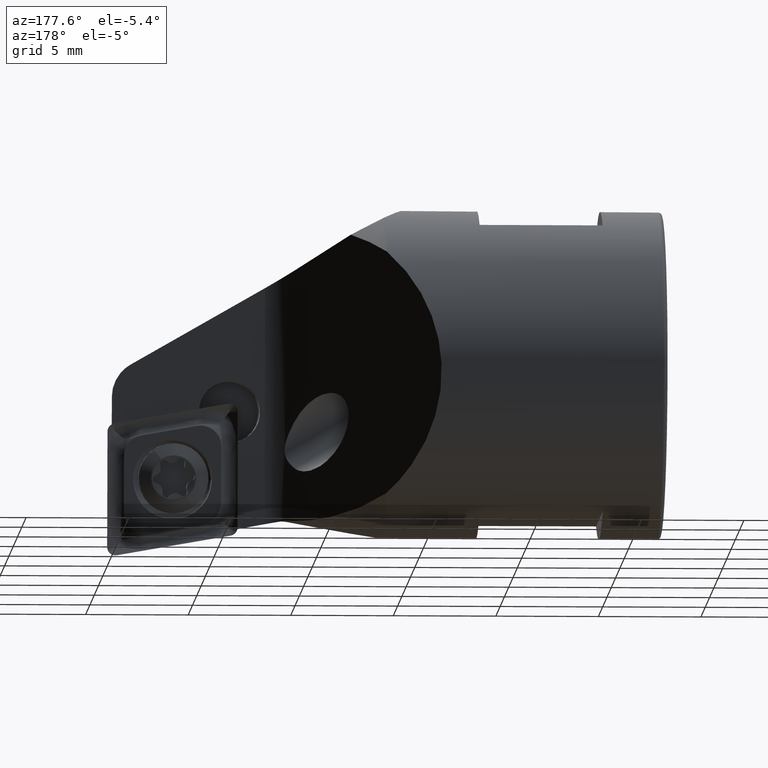
[diagram: clean part render]
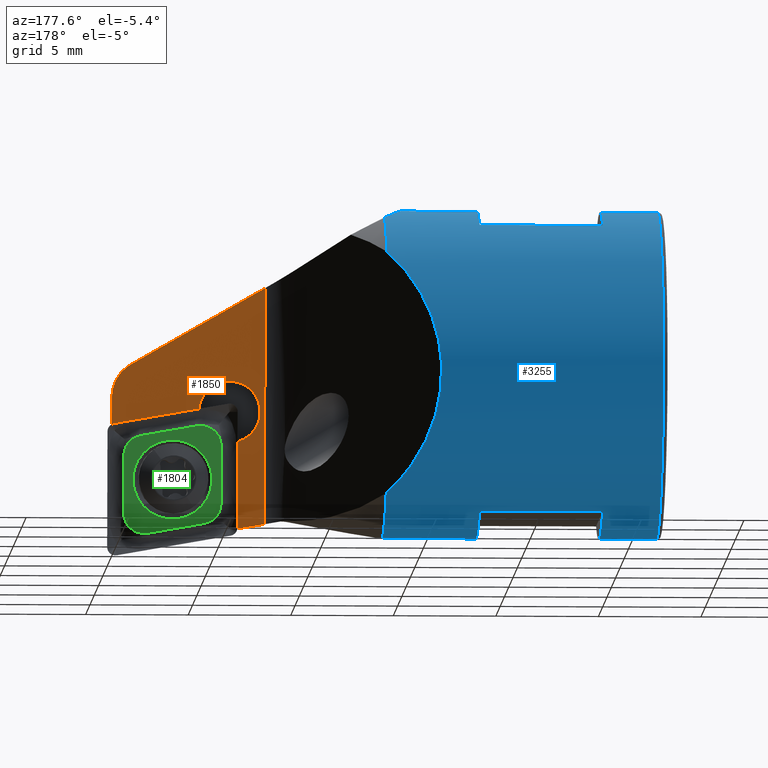
[diagram: same view with three faces highlighted in distinct colors, each labeled with its STEP entity id]
A machine part, auxiliary view with three faces highlighted in distinct colors.
Their STEP definitions:

[orange] entity #1850 — the highlighted planar face has unit normal (-0, -0.9976, 0.0698).
#24 = EDGE_CURVE ( 'NONE', #2496, #3749, #180, .T. ) ;
#27 = LINE ( 'NONE', #2710, #4649 ) ;
#180 = LINE ( 'NONE', #4576, #399 ) ;
#366 = CARTESIAN_POINT ( 'NONE',  ( -6.337721543909705900, 1.163699807732097900, 18.07524127599599200 ) ) ;
#368 = VERTEX_POINT ( 'NONE', #3011 ) ;
#399 = VECTOR ( 'NONE', #1688, 999.9999999999998900 ) ;
#412 = CARTESIAN_POINT ( 'NONE',  ( -7.671572875253806600, 0.008331871952272740900, 1.552710022703391000 ) ) ;
#464 = EDGE_CURVE ( 'NONE', #3749, #1198, #1265, .T. ) ;
#522 = EDGE_CURVE ( 'NONE', #4474, #2143, #644, .T. ) ;
#566 = EDGE_CURVE ( 'NONE', #1100, #4474, #1872, .T. ) ;
#593 = CARTESIAN_POINT ( 'NONE',  ( -5.949999999999999300, 0.4941664265494102300, 8.500467843974981000 ) ) ;
#644 = LINE ( 'NONE', #366, #1815 ) ;
#686 = EDGE_CURVE ( 'NONE', #2948, #2496, #27, .T. ) ;
#735 =( BOUNDED_CURVE ( )  B_SPLINE_CURVE ( 3, ( #3714, #1196, #3385, #1180 ),
 .UNSPECIFIED., .F., .T. ) 
 B_SPLINE_CURVE_WITH_KNOTS ( ( 4, 4 ),
 ( 3.141592653589793600, 4.188790204786395000 ),
 .UNSPECIFIED. ) 
 CURVE ( )  GEOMETRIC_REPRESENTATION_ITEM ( )  RATIONAL_B_SPLINE_CURVE ( ( 1.000000000000000000, 0.9106836025229584400, 0.9106836025229584400, 1.000000000000000000 ) ) 
 REPRESENTATION_ITEM ( '' )  );
#739 = DIRECTION ( 'NONE',  ( -2.673928673440923600E-016, -0.06975647374412889700, -0.9975640502598240900 ) ) ;
#807 = EDGE_CURVE ( 'NONE', #2837, #2948, #735, .T. ) ;
#996 = AXIS2_PLACEMENT_3D ( 'NONE', #3882, #3535, #3524 ) ;
#1008 = CARTESIAN_POINT ( 'NONE',  ( -6.337721543909709400, 0.2884528763772578100, 5.558627018479816300 ) ) ;
#1044 = DIRECTION ( 'NONE',  ( 0.0000000000000000000, -0.06975647374412888300, -0.9975640502598239800 ) ) ;
#1068 = DIRECTION ( 'NONE',  ( 0.0000000000000000000, -0.06975647374412888300, -0.9975640502598239800 ) ) ;
#1100 = VERTEX_POINT ( 'NONE', #593 ) ;
#1105 = DIRECTION ( 'NONE',  ( -0.9848077530122073500, 0.01211308454613938900, 0.1732251794336641700 ) ) ;
#1167 = PLANE ( 'NONE',  #3332 ) ;
#1180 = CARTESIAN_POINT ( 'NONE',  ( -1.119788281549143300, 0.5491258529037024200, 9.286424257928022300 ) ) ;
#1196 = CARTESIAN_POINT ( 'NONE',  ( -0.2122784560902990800, 0.4862930311162539400, 8.387873043578306200 ) ) ;
#1198 = VERTEX_POINT ( 'NONE', #2431 ) ;
#1265 = B_SPLINE_CURVE_WITH_KNOTS ( 'NONE', 3,
 ( #412, #2937, #3318, #2561 ),
 .UNSPECIFIED., .F., .F.,
 ( 4, 4 ),
 ( 2.031007869678814500E-007, 0.0006863923150194160100 ),
 .UNSPECIFIED. ) ;
#1269 = DIRECTION ( 'NONE',  ( -8.323569657295454800E-017, -0.9975640502598239800, 0.06975647374412888300 ) ) ;
#1286 = CARTESIAN_POINT ( 'NONE',  ( -0.2122784560902903100, 0.3464213542042839900, 6.387614873293690800 ) ) ;
#1408 = CARTESIAN_POINT ( 'NONE',  ( -5.949999999999999300, 0.3895317159332160100, 7.004121768585234200 ) ) ;
#1584 = CARTESIAN_POINT ( 'NONE',  ( -0.2122784560902901700, 1.163699807732097200, 18.07524127599599200 ) ) ;
#1633 = DIRECTION ( 'NONE',  ( -0.8676376859984115100, 0.03468270870635911700, 0.4959858420883721000 ) ) ;
#1688 = DIRECTION ( 'NONE',  ( -0.0000000000000000000, -0.06975647374412891100, -0.9975640502598240900 ) ) ;
#1734 = CARTESIAN_POINT ( 'NONE',  ( -6.337721543909710300, -0.008114519968755807100, 1.317515660713686900 ) ) ;
#1769 = CARTESIAN_POINT ( 'NONE',  ( -6.995859043601743800, -4.436204263310038100E-016, 1.433558702620277400 ) ) ;
#1805 = ORIENTED_EDGE ( 'NONE', *, *, #686, .F. ) ;
#1811 = ORIENTED_EDGE ( 'NONE', *, *, #807, .F. ) ;
#1815 = VECTOR ( 'NONE', #739, 999.9999999999998900 ) ;
#1837 = ORIENTED_EDGE ( 'NONE', *, *, #566, .T. ) ;
#1850 = ADVANCED_FACE ( 'NONE', ( #3482 ), #1167, .F. ) ;
#1868 = VERTEX_POINT ( 'NONE', #1286 ) ;
#1872 = CIRCLE ( 'NONE', #3816, 1.500000000000012200 ) ;
#2049 = EDGE_CURVE ( 'NONE', #1198, #2143, #2764, .T. ) ;
#2113 = EDGE_CURVE ( 'NONE', #368, #1100, #3327, .T. ) ;
#2143 = VERTEX_POINT ( 'NONE', #3166 ) ;
#2175 = CARTESIAN_POINT ( 'NONE',  ( -6.557100956112936500, -0.005409776924874504100, 1.356195288294396800 ) ) ;
#2431 = CARTESIAN_POINT ( 'NONE',  ( -6.995859043601743800, -4.436204263310038100E-016, 1.433558702620277400 ) ) ;
#2496 = VERTEX_POINT ( 'NONE', #2930 ) ;
#2561 = CARTESIAN_POINT ( 'NONE',  ( -6.995859043601743800, -4.436204263310038100E-016, 1.433558702620277400 ) ) ;
#2667 = ORIENTED_EDGE ( 'NONE', *, *, #2113, .T. ) ;
#2703 = ORIENTED_EDGE ( 'NONE', *, *, #522, .T. ) ;
#2710 = CARTESIAN_POINT ( 'NONE',  ( -4.077455297787660800, 0.6673548155571237300, 10.97717719471176600 ) ) ;
#2729 = EDGE_LOOP ( 'NONE', ( #3447, #2667, #1837, #2703, #3122, #3193, #2792, #1805, #1811, #2953 ) ) ;
#2747 = EDGE_CURVE ( 'NONE', #2837, #1868, #3141, .T. ) ;
#2764 = B_SPLINE_CURVE_WITH_KNOTS ( 'NONE', 3,
 ( #1769, #3818, #2175, #1734 ),
 .UNSPECIFIED., .F., .F.,
 ( 4, 4 ),
 ( 0.0006863923150194160100, 0.001354731151622601700 ),
 .UNSPECIFIED. ) ;
#2792 = ORIENTED_EDGE ( 'NONE', *, *, #24, .F. ) ;
#2803 = CARTESIAN_POINT ( 'NONE',  ( -1.119788281549143300, 0.5491258529037024200, 9.286424257928022300 ) ) ;
#2837 = VERTEX_POINT ( 'NONE', #4454 ) ;
#2930 = CARTESIAN_POINT ( 'NONE',  ( -7.671572875253806600, 0.8110250767816824500, 13.03175765149869000 ) ) ;
#2937 = CARTESIAN_POINT ( 'NONE',  ( -7.446335207320705000, 0.005554472405415430800, 1.512991358722244100 ) ) ;
#2948 = VERTEX_POINT ( 'NONE', #2803 ) ;
#2953 = ORIENTED_EDGE ( 'NONE', *, *, #2747, .T. ) ;
#3011 = CARTESIAN_POINT ( 'NONE',  ( -4.455662297605799800, 0.3986147564970480800, 7.134015300284769300 ) ) ;
#3065 = CARTESIAN_POINT ( 'NONE',  ( -2.009983433530131400, 0.3685330326655261700, 6.703826607343622800 ) ) ;
#3122 = ORIENTED_EDGE ( 'NONE', *, *, #2049, .F. ) ;
#3141 = LINE ( 'NONE', #1584, #3606 ) ;
#3166 = CARTESIAN_POINT ( 'NONE',  ( -6.337721543909710300, -0.008114519968755807100, 1.317515660713686900 ) ) ;
#3193 = ORIENTED_EDGE ( 'NONE', *, *, #464, .F. ) ;
#3318 = CARTESIAN_POINT ( 'NONE',  ( -7.221097258986692000, 0.002777183506422210100, 1.473274277079267700 ) ) ;
#3327 = CIRCLE ( 'NONE', #996, 1.500000000000012200 ) ;
#3332 = AXIS2_PLACEMENT_3D ( 'NONE', #3765, #1269, #1068 ) ;
#3385 = CARTESIAN_POINT ( 'NONE',  ( -0.5444501063922200200, 0.5261274439380359000, 8.957531686874665100 ) ) ;
#3447 = ORIENTED_EDGE ( 'NONE', *, *, #3806, .T. ) ;
#3482 = FACE_OUTER_BOUND ( 'NONE', #2729, .T. ) ;
#3509 = VECTOR ( 'NONE', #1105, 1000.000000000000100 ) ;
#3524 = DIRECTION ( 'NONE',  ( 0.0000000000000000000, -0.06975647374412888300, -0.9975640502598239800 ) ) ;
#3535 = DIRECTION ( 'NONE',  ( -8.323569657295456000E-017, -0.9975640502598240900, 0.06975647374412889700 ) ) ;
#3577 = DIRECTION ( 'NONE',  ( -8.323569657295456000E-017, -0.9975640502598240900, 0.06975647374412889700 ) ) ;
#3606 = VECTOR ( 'NONE', #3777, 999.9999999999998900 ) ;
#3640 = CARTESIAN_POINT ( 'NONE',  ( -7.671572875253806600, 0.008331871952272740900, 1.552710022703391000 ) ) ;
#3714 = CARTESIAN_POINT ( 'NONE',  ( -0.2122784560902902000, 0.4402962131849207900, 7.730087901471606000 ) ) ;
#3749 = VERTEX_POINT ( 'NONE', #3640 ) ;
#3765 = CARTESIAN_POINT ( 'NONE',  ( 0.0000000000000000000, 1.163699807732097200, 18.07524127599599200 ) ) ;
#3777 = DIRECTION ( 'NONE',  ( -3.495501893001518600E-018, -0.06975647374412891100, -0.9975640502598240900 ) ) ;
#3806 = EDGE_CURVE ( 'NONE', #1868, #368, #4229, .T. ) ;
#3816 = AXIS2_PLACEMENT_3D ( 'NONE', #1408, #3577, #1044 ) ;
#3818 = CARTESIAN_POINT ( 'NONE',  ( -6.776480126534665700, -0.002704938454135335300, 1.394876280542747500 ) ) ;
#3882 = CARTESIAN_POINT ( 'NONE',  ( -5.949999999999999300, 0.3895317159332160100, 7.004121768585234200 ) ) ;
#4229 = LINE ( 'NONE', #3065, #3509 ) ;
#4454 = CARTESIAN_POINT ( 'NONE',  ( -0.2122784560902902000, 0.4402962131849207900, 7.730087901471606000 ) ) ;
#4474 = VERTEX_POINT ( 'NONE', #1008 ) ;
#4576 = CARTESIAN_POINT ( 'NONE',  ( -7.671572875253806600, 1.163699807732097900, 18.07524127599599200 ) ) ;
#4649 = VECTOR ( 'NONE', #1633, 1000.000000000000100 ) ;

[blue] entity #3255 — the highlighted cylindrical surface (partial cylindrical patch) has radius 8 mm, axis along (-1, -0, -0).
#41 = DIRECTION ( 'NONE',  ( 1.000000000000000000, 0.0000000000000000000, 0.0000000000000000000 ) ) ;
#44 = CARTESIAN_POINT ( 'NONE',  ( -26.80000000000000100, 9.797174393178825700E-016, 0.8749999999999990000 ) ) ;
#65 = EDGE_CURVE ( 'NONE', #3859, #3621, #4622, .T. ) ;
#89 = DIRECTION ( 'NONE',  ( -1.000000000000000000, -0.0000000000000000000, -0.0000000000000000000 ) ) ;
#110 = ORIENTED_EDGE ( 'NONE', *, *, #2617, .T. ) ;
#120 = EDGE_CURVE ( 'NONE', #4185, #1428, #652, .T. ) ;
#142 = DIRECTION ( 'NONE',  ( -1.000000000000000000, -0.0000000000000000000, -0.0000000000000000000 ) ) ;
#182 = DIRECTION ( 'NONE',  ( -1.000000000000000000, -0.0000000000000000000, -0.0000000000000000000 ) ) ;
#214 = CYLINDRICAL_SURFACE ( 'NONE', #910, 8.000000000000001800 ) ;
#216 = EDGE_CURVE ( 'NONE', #2302, #1145, #2173, .T. ) ;
#283 = VECTOR ( 'NONE', #3525, 1000.000000000000000 ) ;
#310 = VERTEX_POINT ( 'NONE', #3802 ) ;
#344 = DIRECTION ( 'NONE',  ( 0.0000000000000000000, 0.0000000000000000000, 1.000000000000000000 ) ) ;
#367 = CARTESIAN_POINT ( 'NONE',  ( -24.00000000000000000, 9.797174393178825700E-016, 0.8749999999999990000 ) ) ;
#381 = FACE_OUTER_BOUND ( 'NONE', #4144, .T. ) ;
#394 = DIRECTION ( 'NONE',  ( -1.000000000000000000, -0.0000000000000000000, -0.0000000000000000000 ) ) ;
#396 = CARTESIAN_POINT ( 'NONE',  ( -26.80000000000000100, 0.0000000000000000000, 8.875000000000000000 ) ) ;
#424 = ORIENTED_EDGE ( 'NONE', *, *, #841, .F. ) ;
#499 = EDGE_CURVE ( 'NONE', #1145, #2898, #1547, .T. ) ;
#516 = VERTEX_POINT ( 'NONE', #1104 ) ;
#533 = AXIS2_PLACEMENT_3D ( 'NONE', #1510, #3683, #1154 ) ;
#576 = VECTOR ( 'NONE', #89, 1000.000000000000000 ) ;
#579 = ORIENTED_EDGE ( 'NONE', *, *, #3759, .T. ) ;
#610 =( BOUNDED_CURVE ( )  B_SPLINE_CURVE ( 3, ( #4101, #1016, #4486, #825 ),
 .UNSPECIFIED., .F., .T. ) 
 B_SPLINE_CURVE_WITH_KNOTS ( ( 4, 4 ),
 ( 5.456592466944900200, 7.109778147414272300 ),
 .UNSPECIFIED. ) 
 CURVE ( )  GEOMETRIC_REPRESENTATION_ITEM ( )  RATIONAL_B_SPLINE_CURVE ( ( 1.000000000000000000, 0.7849240587065967600, 0.7849240587065967600, 1.000000000000000000 ) ) 
 REPRESENTATION_ITEM ( '' )  );
#617 = DIRECTION ( 'NONE',  ( -1.000000000000000000, 0.0000000000000000000, 0.0000000000000000000 ) ) ;
#652 = CIRCLE ( 'NONE', #2601, 8.000000000000000000 ) ;
#659 = VECTOR ( 'NONE', #1628, 1000.000000000000000 ) ;
#757 = VERTEX_POINT ( 'NONE', #1583 ) ;
#825 = CARTESIAN_POINT ( 'NONE',  ( -13.40000000000000000, 4.995369731631496900, 2.626297635164571300 ) ) ;
#839 = EDGE_CURVE ( 'NONE', #2898, #757, #1751, .T. ) ;
#841 = EDGE_CURVE ( 'NONE', #757, #1428, #3574, .T. ) ;
#863 = CARTESIAN_POINT ( 'NONE',  ( -28.59735948021380400, 0.0000000000000000000, 16.87500000000000000 ) ) ;
#881 = VECTOR ( 'NONE', #394, 1000.000000000000000 ) ;
#910 = AXIS2_PLACEMENT_3D ( 'NONE', #1133, #182, #344 ) ;
#914 = ORIENTED_EDGE ( 'NONE', *, *, #120, .T. ) ;
#939 = CARTESIAN_POINT ( 'NONE',  ( -14.39467914299271100, 1.016792877065220600, 16.87500000000000000 ) ) ;
#1016 = CARTESIAN_POINT ( 'NONE',  ( -17.07694568971588500, 9.248211545426734400, 10.73359413129252200 ) ) ;
#1104 = CARTESIAN_POINT ( 'NONE',  ( -13.40000000000000000, 5.816406421883498500, 14.36766932697321600 ) ) ;
#1133 = CARTESIAN_POINT ( 'NONE',  ( -28.59735948021380400, 0.0000000000000000000, 8.875000000000000000 ) ) ;
#1138 = AXIS2_PLACEMENT_3D ( 'NONE', #4513, #2709, #2358 ) ;
#1145 = VERTEX_POINT ( 'NONE', #4605 ) ;
#1146 = LINE ( 'NONE', #863, #659 ) ;
#1154 = DIRECTION ( 'NONE',  ( 0.0000000000000000000, 0.0000000000000000000, -1.000000000000000000 ) ) ;
#1242 = EDGE_CURVE ( 'NONE', #310, #3370, #4238, .T. ) ;
#1253 = AXIS2_PLACEMENT_3D ( 'NONE', #3203, #4670, #1378 ) ;
#1306 = ORIENTED_EDGE ( 'NONE', *, *, #1242, .T. ) ;
#1361 = ORIENTED_EDGE ( 'NONE', *, *, #3706, .T. ) ;
#1378 = DIRECTION ( 'NONE',  ( 0.0000000000000000000, 0.0000000000000000000, 1.000000000000000000 ) ) ;
#1428 = VERTEX_POINT ( 'NONE', #3156 ) ;
#1510 = CARTESIAN_POINT ( 'NONE',  ( -24.00000000000000000, 0.0000000000000000000, 8.875000000000000000 ) ) ;
#1524 = ORIENTED_EDGE ( 'NONE', *, *, #839, .F. ) ;
#1536 = AXIS2_PLACEMENT_3D ( 'NONE', #2329, #142, #1762 ) ;
#1547 = LINE ( 'NONE', #3639, #881 ) ;
#1583 = CARTESIAN_POINT ( 'NONE',  ( -24.00000000000000000, 0.0000000000000000000, 16.87500000000000000 ) ) ;
#1606 = ORIENTED_EDGE ( 'NONE', *, *, #3006, .T. ) ;
#1626 = VERTEX_POINT ( 'NONE', #4072 ) ;
#1628 = DIRECTION ( 'NONE',  ( -1.000000000000000000, -0.0000000000000000000, -0.0000000000000000000 ) ) ;
#1669 = ORIENTED_EDGE ( 'NONE', *, *, #4629, .T. ) ;
#1751 = CIRCLE ( 'NONE', #533, 8.000000000000000000 ) ;
#1762 = DIRECTION ( 'NONE',  ( 0.0000000000000000000, 0.0000000000000000000, 1.000000000000000000 ) ) ;
#1780 = CARTESIAN_POINT ( 'NONE',  ( -13.40000000000000200, 2.960014748538741800, 16.30724815842643200 ) ) ;
#1891 = ORIENTED_EDGE ( 'NONE', *, *, #2698, .F. ) ;
#1914 = ORIENTED_EDGE ( 'NONE', *, *, #3187, .T. ) ;
#1972 = ORIENTED_EDGE ( 'NONE', *, *, #65, .F. ) ;
#2057 = CARTESIAN_POINT ( 'NONE',  ( -18.00000000000000400, 0.0000000000000000000, 8.875000000000000000 ) ) ;
#2173 = CIRCLE ( 'NONE', #4000, 8.000000000000001800 ) ;
#2192 = DIRECTION ( 'NONE',  ( 0.0000000000000000000, 0.0000000000000000000, -1.000000000000000000 ) ) ;
#2195 = CARTESIAN_POINT ( 'NONE',  ( -28.59735948021380400, 9.797174393178825700E-016, 0.8749999999999990000 ) ) ;
#2241 = CARTESIAN_POINT ( 'NONE',  ( -28.59735948021380400, 0.0000000000000000000, 16.87500000000000000 ) ) ;
#2302 = VERTEX_POINT ( 'NONE', #4492 ) ;
#2320 = CARTESIAN_POINT ( 'NONE',  ( -13.40000000000000200, 2.960014748538741800, 16.30724815842643200 ) ) ;
#2329 = CARTESIAN_POINT ( 'NONE',  ( -13.40000000000000000, 0.0000000000000000000, 8.875000000000000000 ) ) ;
#2358 = DIRECTION ( 'NONE',  ( 0.0000000000000000000, 0.0000000000000000000, 1.000000000000000000 ) ) ;
#2432 = VERTEX_POINT ( 'NONE', #3895 ) ;
#2472 = VECTOR ( 'NONE', #3134, 1000.000000000000000 ) ;
#2522 = CIRCLE ( 'NONE', #4190, 8.000000000000000000 ) ;
#2552 = LINE ( 'NONE', #4363, #3015 ) ;
#2562 = DIRECTION ( 'NONE',  ( 1.000000000000000000, 0.0000000000000000000, 0.0000000000000000000 ) ) ;
#2601 = AXIS2_PLACEMENT_3D ( 'NONE', #396, #41, #2192 ) ;
#2617 = EDGE_CURVE ( 'NONE', #2432, #3786, #4198, .T. ) ;
#2698 = EDGE_CURVE ( 'NONE', #3621, #2302, #1146, .T. ) ;
#2709 = DIRECTION ( 'NONE',  ( -1.000000000000000000, 0.0000000000000000000, 0.0000000000000000000 ) ) ;
#2741 = ORIENTED_EDGE ( 'NONE', *, *, #3376, .T. ) ;
#2762 = DIRECTION ( 'NONE',  ( 0.0000000000000000000, 0.0000000000000000000, 1.000000000000000000 ) ) ;
#2861 = CARTESIAN_POINT ( 'NONE',  ( -28.59735948021380400, 9.797174393178825700E-016, 0.8749999999999990000 ) ) ;
#2874 = DIRECTION ( 'NONE',  ( -1.000000000000000000, -0.0000000000000000000, -0.0000000000000000000 ) ) ;
#2898 = VERTEX_POINT ( 'NONE', #4276 ) ;
#2956 = VERTEX_POINT ( 'NONE', #4654 ) ;
#3006 = EDGE_CURVE ( 'NONE', #2956, #2432, #2552, .T. ) ;
#3015 = VECTOR ( 'NONE', #2874, 1000.000000000000000 ) ;
#3054 = CARTESIAN_POINT ( 'NONE',  ( -14.39544820129880000, 0.0000000000000000000, 16.87500000000000000 ) ) ;
#3134 = DIRECTION ( 'NONE',  ( -1.000000000000000000, -0.0000000000000000000, -0.0000000000000000000 ) ) ;
#3146 = CARTESIAN_POINT ( 'NONE',  ( -18.00000000000000400, 0.0000000000000000000, 8.875000000000000000 ) ) ;
#3156 = CARTESIAN_POINT ( 'NONE',  ( -26.80000000000000100, 0.0000000000000000000, 16.87500000000000000 ) ) ;
#3187 = EDGE_CURVE ( 'NONE', #516, #310, #610, .T. ) ;
#3203 = CARTESIAN_POINT ( 'NONE',  ( -13.40000000000000000, 0.0000000000000000000, 8.875000000000000000 ) ) ;
#3243 = DIRECTION ( 'NONE',  ( 0.0000000000000000000, 0.0000000000000000000, -1.000000000000000000 ) ) ;
#3255 = ADVANCED_FACE ( 'NONE', ( #381 ), #214, .T. ) ;
#3370 = VERTEX_POINT ( 'NONE', #3929 ) ;
#3376 = EDGE_CURVE ( 'NONE', #3859, #516, #3396, .T. ) ;
#3396 = CIRCLE ( 'NONE', #1536, 8.000000000000001800 ) ;
#3419 = CARTESIAN_POINT ( 'NONE',  ( -14.05885501612381800, 2.015382625030107000, 16.68346339746670600 ) ) ;
#3525 = DIRECTION ( 'NONE',  ( -1.000000000000000000, -0.0000000000000000000, -0.0000000000000000000 ) ) ;
#3558 = ORIENTED_EDGE ( 'NONE', *, *, #216, .F. ) ;
#3569 = LINE ( 'NONE', #2861, #283 ) ;
#3574 = LINE ( 'NONE', #2241, #576 ) ;
#3621 = VERTEX_POINT ( 'NONE', #4311 ) ;
#3639 = CARTESIAN_POINT ( 'NONE',  ( -28.59735948021380400, 3.872983346207415200, 15.87500000000000000 ) ) ;
#3683 = DIRECTION ( 'NONE',  ( 1.000000000000000000, 0.0000000000000000000, 0.0000000000000000000 ) ) ;
#3706 = EDGE_CURVE ( 'NONE', #1626, #2956, #2522, .T. ) ;
#3759 = EDGE_CURVE ( 'NONE', #3786, #4185, #3569, .T. ) ;
#3786 = VERTEX_POINT ( 'NONE', #367 ) ;
#3802 = CARTESIAN_POINT ( 'NONE',  ( -13.40000000000000000, 4.995369731631496900, 2.626297635164571300 ) ) ;
#3830 = LINE ( 'NONE', #2195, #2472 ) ;
#3859 = VERTEX_POINT ( 'NONE', #1780 ) ;
#3895 = CARTESIAN_POINT ( 'NONE',  ( -24.00000000000000000, 3.872983346207416100, 1.874999999999999100 ) ) ;
#3929 = CARTESIAN_POINT ( 'NONE',  ( -13.40000000000000000, 9.797174393178825700E-016, 0.8749999999999990000 ) ) ;
#3970 = ORIENTED_EDGE ( 'NONE', *, *, #499, .F. ) ;
#4000 = AXIS2_PLACEMENT_3D ( 'NONE', #3146, #617, #2762 ) ;
#4072 = CARTESIAN_POINT ( 'NONE',  ( -18.00000000000000400, 9.797174393178825700E-016, 0.8749999999999990000 ) ) ;
#4101 = CARTESIAN_POINT ( 'NONE',  ( -13.40000000000000000, 5.816406421883498500, 14.36766932697321600 ) ) ;
#4144 = EDGE_LOOP ( 'NONE', ( #1306, #1669, #1361, #1606, #110, #579, #914, #424, #1524, #3970, #3558, #1891, #1972, #2741, #1914 ) ) ;
#4185 = VERTEX_POINT ( 'NONE', #44 ) ;
#4190 = AXIS2_PLACEMENT_3D ( 'NONE', #2057, #2562, #3243 ) ;
#4198 = CIRCLE ( 'NONE', #1138, 8.000000000000001800 ) ;
#4238 = CIRCLE ( 'NONE', #1253, 8.000000000000001800 ) ;
#4276 = CARTESIAN_POINT ( 'NONE',  ( -24.00000000000000000, 3.872983346207415200, 15.87500000000000000 ) ) ;
#4311 = CARTESIAN_POINT ( 'NONE',  ( -14.39544820129880000, 0.0000000000000000000, 16.87500000000000000 ) ) ;
#4363 = CARTESIAN_POINT ( 'NONE',  ( -28.59735948021380400, 3.872983346207416100, 1.874999999999999100 ) ) ;
#4486 = CARTESIAN_POINT ( 'NONE',  ( -17.07694568971588500, 8.899542277725045000, 5.747391299918761300 ) ) ;
#4492 = CARTESIAN_POINT ( 'NONE',  ( -18.00000000000000400, 0.0000000000000000000, 16.87500000000000000 ) ) ;
#4513 = CARTESIAN_POINT ( 'NONE',  ( -24.00000000000000000, 0.0000000000000000000, 8.875000000000000000 ) ) ;
#4605 = CARTESIAN_POINT ( 'NONE',  ( -18.00000000000000400, 3.872983346207415200, 15.87500000000000000 ) ) ;
#4622 =( BOUNDED_CURVE ( )  B_SPLINE_CURVE ( 3, ( #2320, #3419, #939, #3054 ),
 .UNSPECIFIED., .F., .T. ) 
 B_SPLINE_CURVE_WITH_KNOTS ( ( 4, 4 ),
 ( 5.903741943103309400, 6.282752948196525200 ),
 .UNSPECIFIED. ) 
 CURVE ( )  GEOMETRIC_REPRESENTATION_ITEM ( )  RATIONAL_B_SPLINE_CURVE ( ( 1.000000000000000000, 0.9880650035282994000, 0.9880650035282994000, 1.000000000000000000 ) ) 
 REPRESENTATION_ITEM ( '' )  );
#4629 = EDGE_CURVE ( 'NONE', #3370, #1626, #3830, .T. ) ;
#4654 = CARTESIAN_POINT ( 'NONE',  ( -18.00000000000000400, 3.872983346207415200, 1.874999999999999100 ) ) ;
#4670 = DIRECTION ( 'NONE',  ( -1.000000000000000000, -0.0000000000000000000, -0.0000000000000000000 ) ) ;

[green] entity #1804 — the highlighted planar face has unit normal (-0, -0.9976, 0.0698).
#69 = DIRECTION ( 'NONE',  ( -0.1736481776669343800, 0.0000000000000000000, -0.9848077530122072400 ) ) ;
#73 = VERTEX_POINT ( 'NONE', #537 ) ;
#163 = ORIENTED_EDGE ( 'NONE', *, *, #1368, .T. ) ;
#178 = CARTESIAN_POINT ( 'NONE',  ( 0.0000000000000000000, -1.705302565824240400E-010, 1.924999999999999600 ) ) ;
#195 = ORIENTED_EDGE ( 'NONE', *, *, #2881, .T. ) ;
#206 = LINE ( 'NONE', #3911, #2967 ) ;
#337 = CARTESIAN_POINT ( 'NONE',  ( 0.0000000000000000000, -1.705302565824240400E-010, 0.0000000000000000000 ) ) ;
#347 = CIRCLE ( 'NONE', #2904, 1.000000000000000000 ) ;
#370 = CIRCLE ( 'NONE', #4252, 1.000000000000000400 ) ;
#436 = ORIENTED_EDGE ( 'NONE', *, *, #3026, .T. ) ;
#496 = CARTESIAN_POINT ( 'NONE',  ( -1.638661189817046700, 0.0000000000000000000, -1.374999999999996200 ) ) ;
#497 = DIRECTION ( 'NONE',  ( 0.0000000000000000000, 0.0000000000000000000, 1.000000000000000000 ) ) ;
#513 = CARTESIAN_POINT ( 'NONE',  ( 2.357445088358654300E-016, -1.705302565824240400E-010, -1.924999999999999600 ) ) ;
#520 = CARTESIAN_POINT ( 'NONE',  ( 2.138569745880963200, 0.0000000000000000000, -1.548648177666929900 ) ) ;
#537 = CARTESIAN_POINT ( 'NONE',  ( -1.153761992868756600, 0.0000000000000000000, 2.375000000000006200 ) ) ;
#549 = ORIENTED_EDGE ( 'NONE', *, *, #4273, .T. ) ;
#668 = DIRECTION ( 'NONE',  ( 0.0000000000000000000, 0.0000000000000000000, 1.000000000000000000 ) ) ;
#776 = EDGE_CURVE ( 'NONE', #3253, #3732, #3796, .T. ) ;
#789 = CIRCLE ( 'NONE', #1390, 1.000000000000000000 ) ;
#886 = FACE_OUTER_BOUND ( 'NONE', #2958, .T. ) ;
#918 = EDGE_CURVE ( 'NONE', #3732, #2643, #2130, .T. ) ;
#920 = ORIENTED_EDGE ( 'NONE', *, *, #918, .T. ) ;
#970 = DIRECTION ( 'NONE',  ( -0.0000000000000000000, 1.000000000000000000, -0.0000000000000000000 ) ) ;
#997 = LINE ( 'NONE', #2541, #2631 ) ;
#1036 = FACE_BOUND ( 'NONE', #4392, .T. ) ;
#1102 = CARTESIAN_POINT ( 'NONE',  ( 1.153761992868756100, 0.0000000000000000000, -2.374999999999995100 ) ) ;
#1281 = DIRECTION ( 'NONE',  ( 0.0000000000000000000, -0.0000000000000000000, -1.000000000000000000 ) ) ;
#1368 = EDGE_CURVE ( 'NONE', #4181, #3253, #4186, .T. ) ;
#1390 = AXIS2_PLACEMENT_3D ( 'NONE', #2264, #3550, #3470 ) ;
#1462 = DIRECTION ( 'NONE',  ( -1.000000000000000000, 0.0000000000000000000, -3.106125688134989300E-016 ) ) ;
#1466 = VERTEX_POINT ( 'NONE', #2514 ) ;
#1482 = VERTEX_POINT ( 'NONE', #4174 ) ;
#1564 = DIRECTION ( 'NONE',  ( 1.000000000000000000, 0.0000000000000000000, 1.553062844067494900E-016 ) ) ;
#1568 = DIRECTION ( 'NONE',  ( 0.0000000000000000000, 1.000000000000000000, 0.0000000000000000000 ) ) ;
#1737 = CARTESIAN_POINT ( 'NONE',  ( 2.623468942829254100, 0.0000000000000000000, 1.201351822333071700 ) ) ;
#1743 = CARTESIAN_POINT ( 'NONE',  ( 0.0000000000000000000, -1.705302565824240400E-010, 0.0000000000000000000 ) ) ;
#1773 = DIRECTION ( 'NONE',  ( 0.0000000000000000000, 1.000000000000000000, 0.0000000000000000000 ) ) ;
#1804 = ADVANCED_FACE ( 'NONE', ( #1036, #886 ), #4106, .F. ) ;
#1911 = CARTESIAN_POINT ( 'NONE',  ( -2.138569745880963600, 0.0000000000000000000, 1.548648177666940300 ) ) ;
#2130 = LINE ( 'NONE', #2550, #3240 ) ;
#2146 = EDGE_CURVE ( 'NONE', #2606, #3422, #4204, .T. ) ;
#2222 = DIRECTION ( 'NONE',  ( 0.0000000000000000000, 1.000000000000000000, 0.0000000000000000000 ) ) ;
#2264 = CARTESIAN_POINT ( 'NONE',  ( -1.153761992868756100, 0.0000000000000000000, 1.375000000000006000 ) ) ;
#2306 = DIRECTION ( 'NONE',  ( 0.0000000000000000000, 0.0000000000000000000, 1.000000000000000000 ) ) ;
#2365 = CARTESIAN_POINT ( 'NONE',  ( -2.328501476516940700, -1.705302565824240400E-010, 2.775000000000004800 ) ) ;
#2417 = AXIS2_PLACEMENT_3D ( 'NONE', #1743, #970, #497 ) ;
#2438 = CARTESIAN_POINT ( 'NONE',  ( -1.638661189817046400, 0.0000000000000000000, -2.374999999999996000 ) ) ;
#2514 = CARTESIAN_POINT ( 'NONE',  ( -2.623468942829254100, 0.0000000000000000000, -1.201351822333062100 ) ) ;
#2524 = AXIS2_PLACEMENT_3D ( 'NONE', #4088, #1568, #3727 ) ;
#2541 = CARTESIAN_POINT ( 'NONE',  ( -1.153761992868756100, 0.0000000000000000000, 2.375000000000006200 ) ) ;
#2550 = CARTESIAN_POINT ( 'NONE',  ( 1.153761992868756100, 0.0000000000000000000, -2.374999999999995100 ) ) ;
#2564 = AXIS2_PLACEMENT_3D ( 'NONE', #2365, #3090, #1281 ) ;
#2606 = VERTEX_POINT ( 'NONE', #178 ) ;
#2631 = VECTOR ( 'NONE', #1564, 1000.000000000000000 ) ;
#2643 = VERTEX_POINT ( 'NONE', #2438 ) ;
#2743 = ORIENTED_EDGE ( 'NONE', *, *, #3383, .F. ) ;
#2793 = DIRECTION ( 'NONE',  ( -0.0000000000000000000, 1.000000000000000000, -0.0000000000000000000 ) ) ;
#2881 = EDGE_CURVE ( 'NONE', #1466, #3353, #206, .T. ) ;
#2904 = AXIS2_PLACEMENT_3D ( 'NONE', #496, #2222, #2306 ) ;
#2939 = ORIENTED_EDGE ( 'NONE', *, *, #3339, .T. ) ;
#2958 = EDGE_LOOP ( 'NONE', ( #2939, #436, #2981, #163, #3180, #920, #549, #195 ) ) ;
#2966 = EDGE_CURVE ( 'NONE', #1482, #4181, #370, .T. ) ;
#2967 = VECTOR ( 'NONE', #4636, 1000.000000000000100 ) ;
#2981 = ORIENTED_EDGE ( 'NONE', *, *, #2966, .T. ) ;
#3026 = EDGE_CURVE ( 'NONE', #73, #1482, #997, .T. ) ;
#3090 = DIRECTION ( 'NONE',  ( 0.0000000000000000000, -1.000000000000000000, 0.0000000000000000000 ) ) ;
#3180 = ORIENTED_EDGE ( 'NONE', *, *, #776, .T. ) ;
#3214 = CARTESIAN_POINT ( 'NONE',  ( 1.638661189817046200, 0.0000000000000000000, 1.375000000000006000 ) ) ;
#3237 = CIRCLE ( 'NONE', #4436, 1.924999999999999600 ) ;
#3240 = VECTOR ( 'NONE', #1462, 1000.000000000000000 ) ;
#3253 = VERTEX_POINT ( 'NONE', #520 ) ;
#3308 = CARTESIAN_POINT ( 'NONE',  ( 2.623468942829254100, 0.0000000000000000000, 1.201351822333071700 ) ) ;
#3339 = EDGE_CURVE ( 'NONE', #3353, #73, #789, .T. ) ;
#3353 = VERTEX_POINT ( 'NONE', #1911 ) ;
#3383 = EDGE_CURVE ( 'NONE', #3422, #2606, #3237, .T. ) ;
#3411 = DIRECTION ( 'NONE',  ( 0.0000000000000000000, 0.0000000000000000000, 1.000000000000000000 ) ) ;
#3422 = VERTEX_POINT ( 'NONE', #513 ) ;
#3470 = DIRECTION ( 'NONE',  ( 0.0000000000000000000, 0.0000000000000000000, 1.000000000000000000 ) ) ;
#3550 = DIRECTION ( 'NONE',  ( 0.0000000000000000000, 1.000000000000000000, 0.0000000000000000000 ) ) ;
#3727 = DIRECTION ( 'NONE',  ( 0.0000000000000000000, 0.0000000000000000000, 1.000000000000000000 ) ) ;
#3732 = VERTEX_POINT ( 'NONE', #1102 ) ;
#3796 = CIRCLE ( 'NONE', #2524, 1.000000000000000000 ) ;
#3911 = CARTESIAN_POINT ( 'NONE',  ( -2.623468942829254100, 0.0000000000000000000, -1.201351822333062100 ) ) ;
#4088 = CARTESIAN_POINT ( 'NONE',  ( 1.153761992868755900, 0.0000000000000000000, -1.374999999999995600 ) ) ;
#4106 = PLANE ( 'NONE',  #2564 ) ;
#4174 = CARTESIAN_POINT ( 'NONE',  ( 1.638661189817046200, -1.705302565824240400E-010, 2.375000000295373500 ) ) ;
#4181 = VERTEX_POINT ( 'NONE', #1737 ) ;
#4186 = LINE ( 'NONE', #3308, #4260 ) ;
#4204 = CIRCLE ( 'NONE', #2417, 1.924999999999999600 ) ;
#4252 = AXIS2_PLACEMENT_3D ( 'NONE', #3214, #1773, #668 ) ;
#4260 = VECTOR ( 'NONE', #69, 1000.000000000000100 ) ;
#4273 = EDGE_CURVE ( 'NONE', #2643, #1466, #347, .T. ) ;
#4392 = EDGE_LOOP ( 'NONE', ( #4583, #2743 ) ) ;
#4436 = AXIS2_PLACEMENT_3D ( 'NONE', #337, #2793, #3411 ) ;
#4583 = ORIENTED_EDGE ( 'NONE', *, *, #2146, .F. ) ;
#4636 = DIRECTION ( 'NONE',  ( 0.1736481776669343300, 0.0000000000000000000, 0.9848077530122072400 ) ) ;